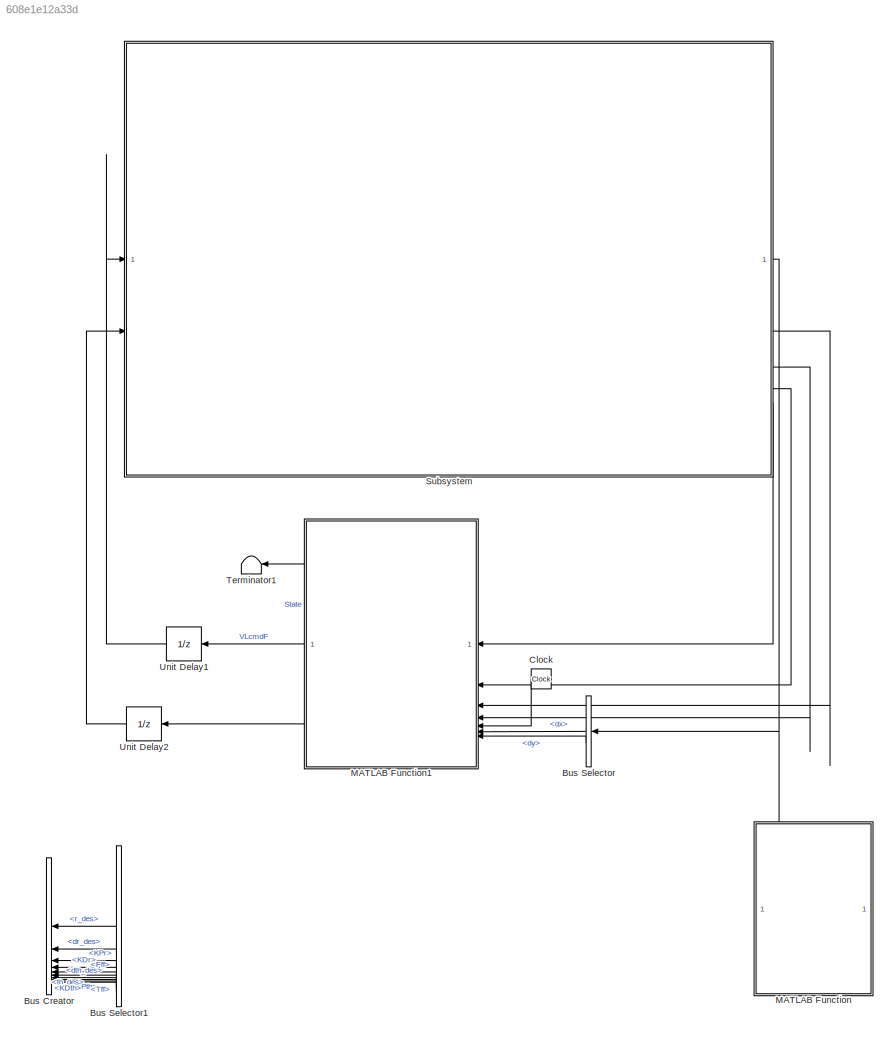
MODEL slx_608e1e12a33d
KIND model
CONFIG AbsTol = auto
CONFIG EnableMultiTasking = off
CONFIG FixedStep = auto
CONFIG MaxStep = auto
CONFIG MinStep = auto
CONFIG RelTol = 1e-3
CONFIG SampleTimeConstraint = Unconstrained
CONFIG SolverName = VariableStepAuto
CONFIG StartTime = 0.0
CONFIG StopTime = 20
BLOCK [BusCreator] Bus Creator
  Commented = on
  DisplayOption = bar
  InheritFromInputs = off
  Inputs = 10
  NonVirtualBus = on
  OutDataTypeStr = Bus: VLcmd
BLOCK [BusSelector] Bus Selector
  OutputSignals = dx,dy
BLOCK [BusSelector] Bus Selector1
  Commented = on
  OutputSignals = r_des,dr_des,KPr,KDr,Fff,th_des,dth_des,KPth,KDth,Tff
BLOCK [Clock] Clock
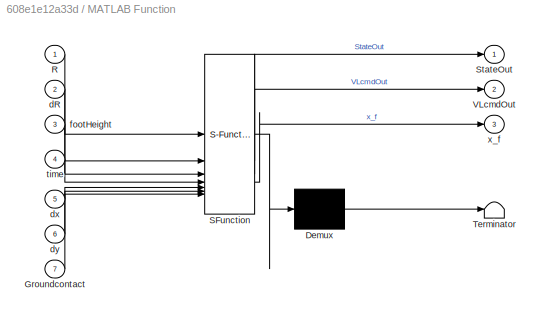
BLOCK [SubSystem] MATLAB Function
  Commented = on
  ErrorFcn = Stateflow.Translate.translate
  PermitHierarchicalResolution = ExplicitOnly
  SFBlockType = MATLAB Function
  TreatAsAtomicUnit = on
BLOCK [Demux] MATLAB Function/ Demux 
  Outputs = 1
BLOCK [S-Function] MATLAB Function/ SFunction 
  EnableBusSupport = off
  FunctionName = sf_sfun
  PortCounts = [7 4]
  SFcnIsStateOwnerBlock = off
  SFunctionDeploymentMode = off
  Tag = Stateflow S-Function 1
BLOCK [Terminator] MATLAB Function/ Terminator 
BLOCK [Inport] MATLAB Function/Groundcontact
  Port = 7
BLOCK [Inport] MATLAB Function/R
BLOCK [Outport] MATLAB Function/StateOut
BLOCK [Outport] MATLAB Function/VLcmdOut
  Port = 2
BLOCK [Inport] MATLAB Function/dR
  Port = 2
BLOCK [Inport] MATLAB Function/dx
  Port = 5
BLOCK [Inport] MATLAB Function/dy
  Port = 6
BLOCK [Inport] MATLAB Function/footHeight
  Port = 3
BLOCK [Inport] MATLAB Function/time
  Port = 4
BLOCK [Outport] MATLAB Function/x_f
  Port = 3
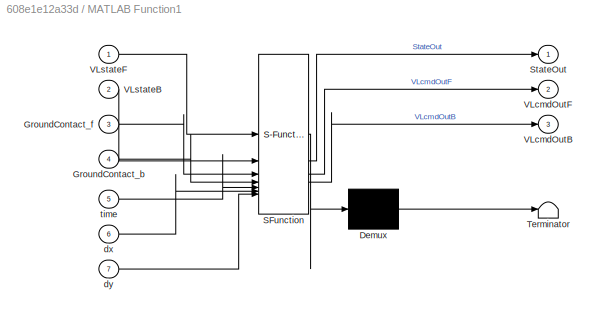
BLOCK [SubSystem] MATLAB Function1
  ErrorFcn = Stateflow.Translate.translate
  PermitHierarchicalResolution = ExplicitOnly
  SFBlockType = MATLAB Function
  TreatAsAtomicUnit = on
BLOCK [Demux] MATLAB Function1/ Demux 
  Outputs = 1
BLOCK [S-Function] MATLAB Function1/ SFunction 
  EnableBusSupport = off
  FunctionName = sf_sfun
  PortCounts = [7 4]
  SFcnIsStateOwnerBlock = off
  SFunctionDeploymentMode = off
  Tag = Stateflow S-Function 4
BLOCK [Terminator] MATLAB Function1/ Terminator 
BLOCK [Inport] MATLAB Function1/GroundContact_b
  Port = 4
BLOCK [Inport] MATLAB Function1/GroundContact_f
  Port = 3
BLOCK [Outport] MATLAB Function1/StateOut
BLOCK [Outport] MATLAB Function1/VLcmdOutB
  Port = 3
BLOCK [Outport] MATLAB Function1/VLcmdOutF
  Port = 2
BLOCK [Inport] MATLAB Function1/VLstateB
  Port = 2
BLOCK [Inport] MATLAB Function1/VLstateF
BLOCK [Inport] MATLAB Function1/dx
  Port = 6
BLOCK [Inport] MATLAB Function1/dy
  Port = 7
BLOCK [Inport] MATLAB Function1/time
  Port = 5
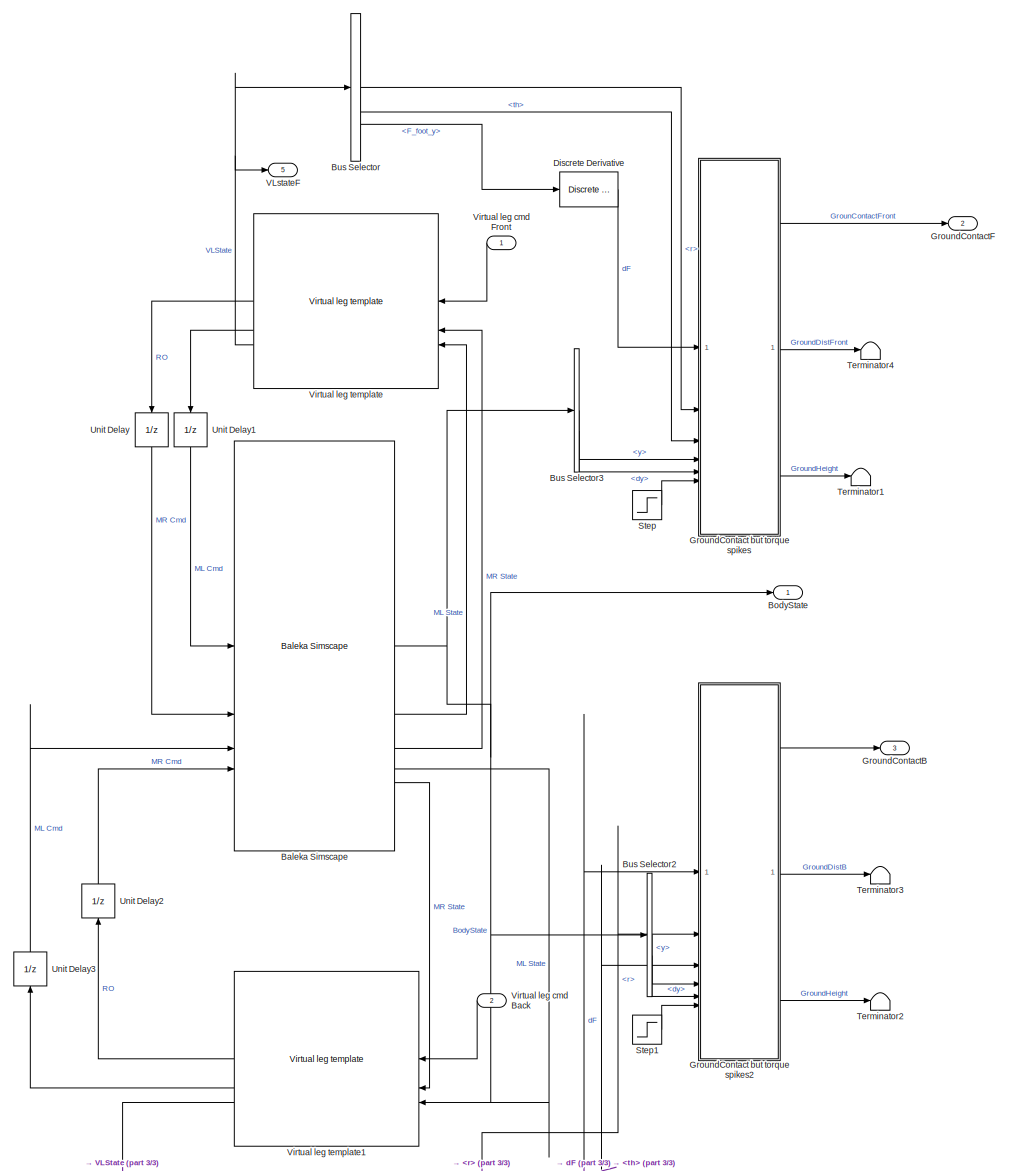
[diagram: Subsystem - part 1/3, most of the canvas]
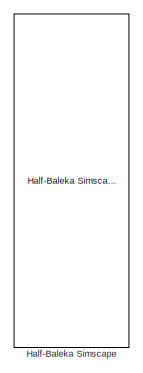
[diagram: Subsystem - part 2/3, middle left region]
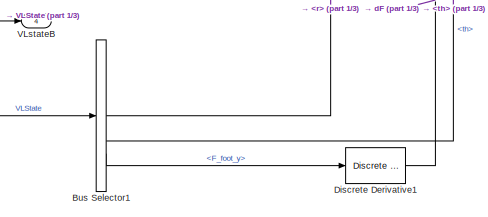
[diagram: Subsystem - part 3/3, bottom center region]
BLOCK [SubSystem] Subsystem
BLOCK [Reference] Subsystem/Baleka Simscape  REF=aru_toolbox/Baleka 2.5/Baleka Simscape
  SourceBlock = aru_toolbox/Baleka 2.5/Baleka Simscape
  SourceProductName = ARU Toolbox
  SourceType = Simulation model
BLOCK [Outport] Subsystem/BodyState
BLOCK [BusSelector] Subsystem/Bus Selector
  OutputSignals = r,th,F_foot_y
BLOCK [BusSelector] Subsystem/Bus Selector1
  OutputSignals = r,th,F_foot_y
BLOCK [BusSelector] Subsystem/Bus Selector2
  OutputSignals = y,dy
BLOCK [BusSelector] Subsystem/Bus Selector3
  OutputSignals = y,dy
BLOCK [Reference] Subsystem/Discrete Derivative  REF=simulink/Discrete/Discrete Derivative
  SourceBlock = simulink/Discrete/Discrete Derivative
  SourceType = Discrete Derivative
BLOCK [Reference] Subsystem/Discrete Derivative1  REF=simulink/Discrete/Discrete Derivative
  SourceBlock = simulink/Discrete/Discrete Derivative
  SourceType = Discrete Derivative
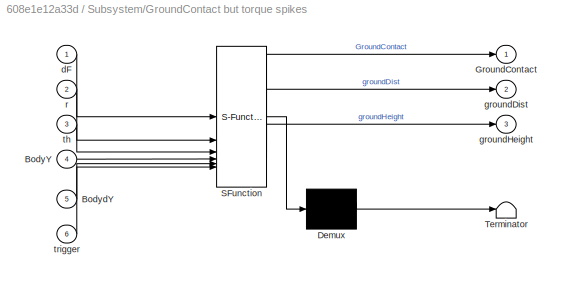
BLOCK [SubSystem] Subsystem/GroundContact but torque spikes
  ErrorFcn = Stateflow.Translate.translate
  PermitHierarchicalResolution = ExplicitOnly
  SFBlockType = MATLAB Function
  TreatAsAtomicUnit = on
BLOCK [Demux] Subsystem/GroundContact but torque spikes/ Demux 
  Outputs = 1
BLOCK [S-Function] Subsystem/GroundContact but torque spikes/ SFunction 
  EnableBusSupport = off
  FunctionName = sf_sfun
  PortCounts = [6 4]
  SFcnIsStateOwnerBlock = off
  SFunctionDeploymentMode = off
  Tag = Stateflow S-Function 2
BLOCK [Terminator] Subsystem/GroundContact but torque spikes/ Terminator 
BLOCK [Inport] Subsystem/GroundContact but torque spikes/BodyY
  Port = 4
BLOCK [Inport] Subsystem/GroundContact but torque spikes/BodydY
  Port = 5
BLOCK [Outport] Subsystem/GroundContact but torque spikes/GroundContact
BLOCK [Inport] Subsystem/GroundContact but torque spikes/dF
BLOCK [Outport] Subsystem/GroundContact but torque spikes/groundDist
  Port = 2
BLOCK [Outport] Subsystem/GroundContact but torque spikes/groundHeight
  Port = 3
BLOCK [Inport] Subsystem/GroundContact but torque spikes/r
  Port = 2
BLOCK [Inport] Subsystem/GroundContact but torque spikes/th
  Port = 3
BLOCK [Inport] Subsystem/GroundContact but torque spikes/trigger
  Port = 6
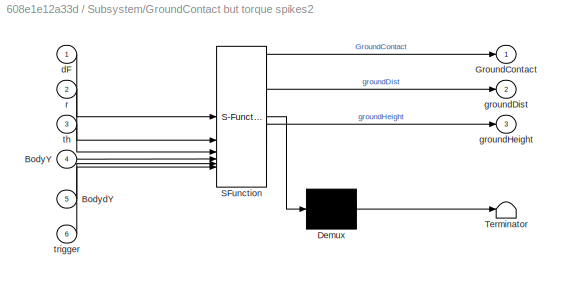
BLOCK [SubSystem] Subsystem/GroundContact but torque spikes2
  ErrorFcn = Stateflow.Translate.translate
  PermitHierarchicalResolution = ExplicitOnly
  SFBlockType = MATLAB Function
  TreatAsAtomicUnit = on
BLOCK [Demux] Subsystem/GroundContact but torque spikes2/ Demux 
  Outputs = 1
BLOCK [S-Function] Subsystem/GroundContact but torque spikes2/ SFunction 
  EnableBusSupport = off
  FunctionName = sf_sfun
  PortCounts = [6 4]
  SFcnIsStateOwnerBlock = off
  SFunctionDeploymentMode = off
  Tag = Stateflow S-Function 5
BLOCK [Terminator] Subsystem/GroundContact but torque spikes2/ Terminator 
BLOCK [Inport] Subsystem/GroundContact but torque spikes2/BodyY
  Port = 4
BLOCK [Inport] Subsystem/GroundContact but torque spikes2/BodydY
  Port = 5
BLOCK [Outport] Subsystem/GroundContact but torque spikes2/GroundContact
BLOCK [Inport] Subsystem/GroundContact but torque spikes2/dF
BLOCK [Outport] Subsystem/GroundContact but torque spikes2/groundDist
  Port = 2
BLOCK [Outport] Subsystem/GroundContact but torque spikes2/groundHeight
  Port = 3
BLOCK [Inport] Subsystem/GroundContact but torque spikes2/r
  Port = 2
BLOCK [Inport] Subsystem/GroundContact but torque spikes2/th
  Port = 3
BLOCK [Inport] Subsystem/GroundContact but torque spikes2/trigger
  Port = 6
BLOCK [Outport] Subsystem/GroundContactB
  Port = 3
BLOCK [Outport] Subsystem/GroundContactF
  Port = 2
BLOCK [Reference] Subsystem/Half-Baleka Simscape  REF=aru_toolbox/Baleka 2.5/Half-Baleka Simscape
  Commented = on
  SourceBlock = aru_toolbox/Baleka 2.5/Half-Baleka Simscape
  SourceProductName = ARU Toolbox
  SourceType = Simulation model
BLOCK [Step] Subsystem/Step
  SampleTime = 0
  Time = 0.005
BLOCK [Step] Subsystem/Step1
  SampleTime = 0
  Time = 0.005
BLOCK [Terminator] Subsystem/Terminator1
BLOCK [Terminator] Subsystem/Terminator2
BLOCK [Terminator] Subsystem/Terminator3
BLOCK [Terminator] Subsystem/Terminator4
BLOCK [UnitDelay] Subsystem/Unit Delay
  HasFrameUpgradeWarning = on
  NameLocation = left
  SampleTime = -1
BLOCK [UnitDelay] Subsystem/Unit Delay1
  HasFrameUpgradeWarning = on
  NameLocation = left
  SampleTime = -1
BLOCK [UnitDelay] Subsystem/Unit Delay2
  HasFrameUpgradeWarning = on
  NameLocation = left
  SampleTime = -1
BLOCK [UnitDelay] Subsystem/Unit Delay3
  HasFrameUpgradeWarning = on
  NameLocation = left
  SampleTime = -1
BLOCK [Outport] Subsystem/VLstateB
  Port = 4
BLOCK [Outport] Subsystem/VLstateF
  Port = 5
BLOCK [Inport] Subsystem/Virtual leg cmd Back
  NameLocation = top
  OutDataTypeStr = Bus: VLcmd
  Port = 2
BLOCK [Inport] Subsystem/Virtual leg cmd Front
  NameLocation = top
  OutDataTypeStr = Bus: VLcmd
BLOCK [Reference] Subsystem/Virtual leg template  REF=aru_toolbox/Baleka 2.5/Virtual leg template
  SourceBlock = aru_toolbox/Baleka 2.5/Virtual leg template
  SourceProductName = ARU Toolbox
BLOCK [Reference] Subsystem/Virtual leg template1  REF=aru_toolbox/Baleka 2.5/Virtual leg template
  SourceBlock = aru_toolbox/Baleka 2.5/Virtual leg template
  SourceProductName = ARU Toolbox
BLOCK [Terminator] Terminator1
BLOCK [UnitDelay] Unit Delay1
  HasFrameUpgradeWarning = on
  SampleTime = -1
BLOCK [UnitDelay] Unit Delay2
  HasFrameUpgradeWarning = on
  SampleTime = -1
LINE Bus Selector1:1 -> Bus Creator:1
LINE Bus Selector1:10 -> Bus Creator:10
LINE Bus Selector1:2 -> Bus Creator:2
LINE Bus Selector1:3 -> Bus Creator:3
LINE Bus Selector1:4 -> Bus Creator:4
LINE Bus Selector1:5 -> Bus Creator:5
LINE Bus Selector1:6 -> Bus Creator:6
LINE Bus Selector1:7 -> Bus Creator:7
LINE Bus Selector1:8 -> Bus Creator:8
LINE Bus Selector1:9 -> Bus Creator:9
LINE Bus Selector:1 -> MATLAB Function1:6
LINE Bus Selector:2 -> MATLAB Function1:7
LINE Clock:1 -> MATLAB Function1:5
LINE MATLAB Function1:1 -> Terminator1:1
LINE MATLAB Function1:2 -> Unit Delay1:1
LINE MATLAB Function1:3 -> Unit Delay2:1
NET Subsystem/Baleka Simscape:1 -> Subsystem/BodyState:1, Subsystem/Bus Selector2:1, Subsystem/Bus Selector3:1
LINE Subsystem/Baleka Simscape:2 -> Subsystem/Virtual leg template:3
LINE Subsystem/Baleka Simscape:3 -> Subsystem/Virtual leg template:2
LINE Subsystem/Baleka Simscape:4 -> Subsystem/Virtual leg template1:3
LINE Subsystem/Baleka Simscape:5 -> Subsystem/Virtual leg template1:2
LINE Subsystem/Bus Selector1:1 -> Subsystem/GroundContact but torque spikes2:2
LINE Subsystem/Bus Selector1:2 -> Subsystem/GroundContact but torque spikes2:3
LINE Subsystem/Bus Selector1:3 -> Subsystem/Discrete Derivative1:1
LINE Subsystem/Bus Selector2:1 -> Subsystem/GroundContact but torque spikes2:4
LINE Subsystem/Bus Selector2:2 -> Subsystem/GroundContact but torque spikes2:5
LINE Subsystem/Bus Selector3:1 -> Subsystem/GroundContact but torque spikes:4
LINE Subsystem/Bus Selector3:2 -> Subsystem/GroundContact but torque spikes:5
LINE Subsystem/Bus Selector:1 -> Subsystem/GroundContact but torque spikes:2
LINE Subsystem/Bus Selector:2 -> Subsystem/GroundContact but torque spikes:3
LINE Subsystem/Bus Selector:3 -> Subsystem/Discrete Derivative:1
LINE Subsystem/Discrete Derivative1:1 -> Subsystem/GroundContact but torque spikes2:1
LINE Subsystem/Discrete Derivative:1 -> Subsystem/GroundContact but torque spikes:1
LINE Subsystem/GroundContact but torque spikes2:1 -> Subsystem/GroundContactB:1
LINE Subsystem/GroundContact but torque spikes2:2 -> Subsystem/Terminator3:1
LINE Subsystem/GroundContact but torque spikes2:3 -> Subsystem/Terminator2:1
LINE Subsystem/GroundContact but torque spikes:1 -> Subsystem/GroundContactF:1
LINE Subsystem/GroundContact but torque spikes:2 -> Subsystem/Terminator4:1
LINE Subsystem/GroundContact but torque spikes:3 -> Subsystem/Terminator1:1
LINE Subsystem/Step1:1 -> Subsystem/GroundContact but torque spikes2:6
LINE Subsystem/Step:1 -> Subsystem/GroundContact but torque spikes:6
LINE Subsystem/Unit Delay1:1 -> Subsystem/Baleka Simscape:1
LINE Subsystem/Unit Delay2:1 -> Subsystem/Baleka Simscape:4
LINE Subsystem/Unit Delay3:1 -> Subsystem/Baleka Simscape:3
LINE Subsystem/Unit Delay:1 -> Subsystem/Baleka Simscape:2
LINE Subsystem/Virtual leg cmd Back:1 -> Subsystem/Virtual leg template1:1
LINE Subsystem/Virtual leg cmd Front:1 -> Subsystem/Virtual leg template:1
LINE Subsystem/Virtual leg template1:1 -> Subsystem/Unit Delay2:1
LINE Subsystem/Virtual leg template1:2 -> Subsystem/Unit Delay3:1
NET Subsystem/Virtual leg template1:3 -> Subsystem/Bus Selector1:1, Subsystem/VLstateB:1
LINE Subsystem/Virtual leg template:1 -> Subsystem/Unit Delay:1
LINE Subsystem/Virtual leg template:2 -> Subsystem/Unit Delay1:1
NET Subsystem/Virtual leg template:3 -> Subsystem/Bus Selector:1, Subsystem/VLstateF:1
LINE Subsystem:1 -> Bus Selector:1
LINE Subsystem:2 -> MATLAB Function1:3
LINE Subsystem:3 -> MATLAB Function1:4
LINE Subsystem:4 -> MATLAB Function1:2
LINE Subsystem:5 -> MATLAB Function1:1
LINE Unit Delay1:1 -> Subsystem:1
LINE Unit Delay2:1 -> Subsystem:2
note: NET lines group one-source signal fan-out (src -> all destinations, sorted); 1:1 wires keep LINE
CHART MATLAB Function states=1 transitions=1
  STATE_LABEL 'eML_blk_kernel()'
  STATE_LABEL 'SCRIPT:\nfunction [StateOut, VLcmdOut, x_f]   = Raibert(R, dR,footHeight, time,dx, dy, Groundcontact)\n    % Raibert hopping state machine\n    persistent state landTime VLcmd x_f_des %dR\n    % State variable\n    % 0 = SETUP\n    % 1 = FLIGHT\n    % 2 = COMPRESSION\n    % 3 = THRUST\n    \n    % Params:\n    Ts = 0.25;\n    Kdx = -0.01;\n    dx_d = 2;\n\n\n    x_f = dx*Ts/2 + Kdx*(dx - dx_d); % Foot placement\n ...<+3227ch>'
CHART Subsystem/GroundContact but torque spikes states=1 transitions=1
  STATE_LABEL 'eML_blk_kernel()'
  STATE_LABEL 'SCRIPT:\nfunction [GroundContact, groundDist, groundHeight]  = ImpactTorque(dF,r, th, BodyY, BodydY, trigger)\n        % need to see how IRL torque spikes work, but we can do a veeery\n        % rough guestimate here:\n        persistent GroundContactpers;\n        persistent GroundHeight;\n        if isempty(GroundContactpers)\n            GroundContactpers = true;\n            GroundHeight = 0;\n        ...<+848ch>'
CHART MATLAB Function1 states=1 transitions=1
  STATE_LABEL 'eML_blk_kernel()'
  STATE_LABEL 'SCRIPT:\nfunction [StateOut, VLcmdOutF, VLcmdOutB] = Raibert(VLstateF, VLstateB, GroundContact_f, GroundContact_b, time, dx, dy)\n    % Raibert hopping state machine\n    persistent state landTime VLcmd_f VLcmd_b x_f_des\n    % State variable\n    % 0 = SETUP\n    % 1 = FLIGHT (front)\n    % 2 = COMPRESSION (front)\n    % 3 = THRUST (front)\n    % 4 = FLIGHT (back)\n    % 5 = COMPRESSION (back)\n    % 6 = TH...<+3608ch>'
CHART Subsystem/GroundContact but torque spikes2 states=1 transitions=1
  STATE_LABEL 'eML_blk_kernel()'
  STATE_LABEL 'SCRIPT:\nfunction [GroundContact, groundDist, groundHeight]  = ImpactTorque(dF,r, th, BodyY, BodydY, trigger)\n        % need to see how IRL torque spikes work, but we can do a veeery\n        % rough guestimate here:\n        persistent GroundContactpers;\n        persistent GroundHeight;\n        if isempty(GroundContactpers)\n            GroundContactpers = true;\n            GroundHeight = 0;\n        ...<+848ch>'
CHART  states=0 transitions=0
CHART  states=0 transitions=0
CHART  states=0 transitions=0
CHART  states=0 transitions=0
